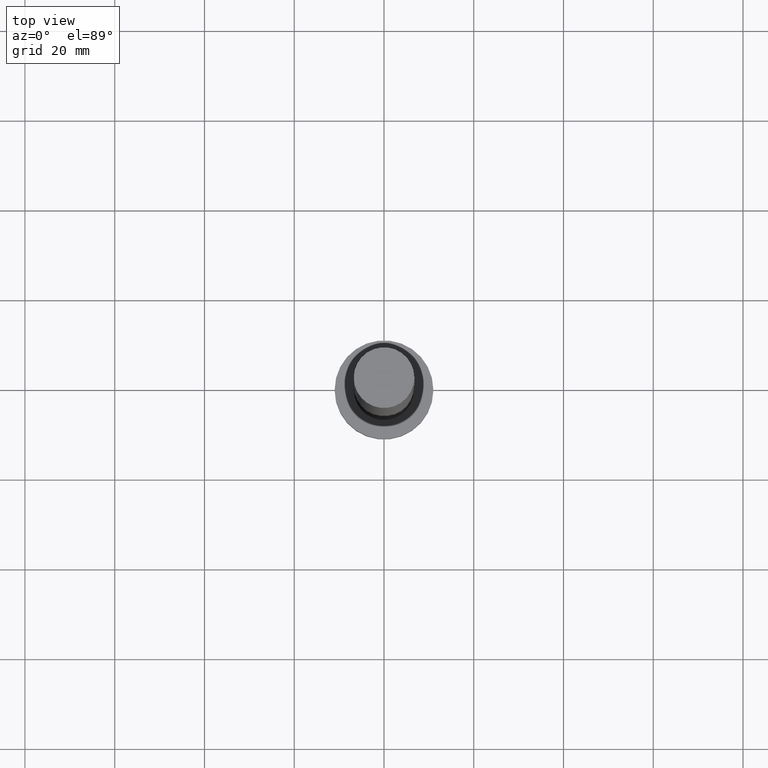
[diagram: clean part render]
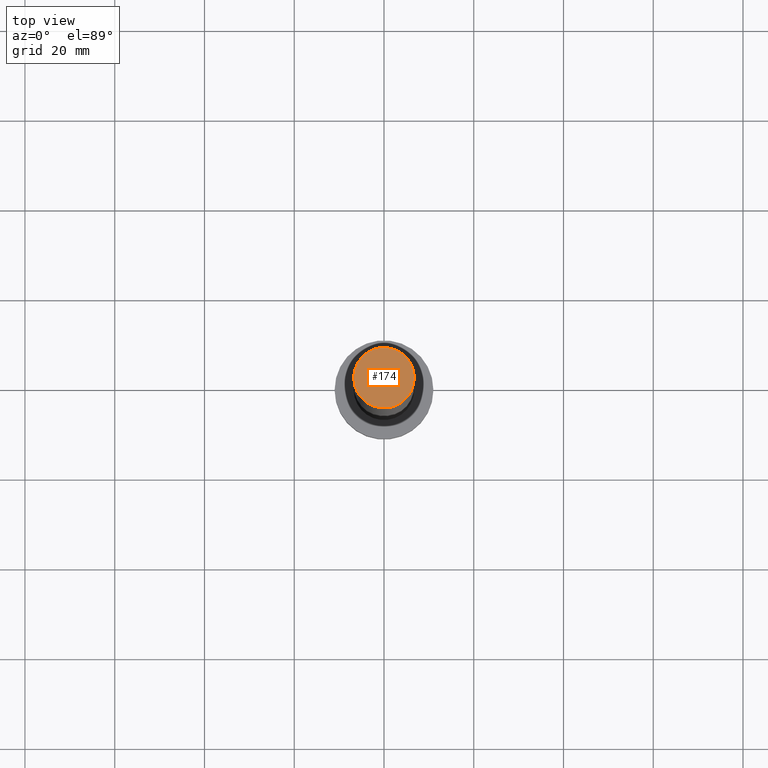
[diagram: same view with one face highlighted and labeled with its STEP entity id]
A machine part, top view. The second image highlights one B-rep face of the part: STEP entity #174.
In plain terms, the highlighted planar face has unit normal (0, 0, 1).
Its self-contained STEP definition (entity closure, byte-faithful):
#2 = DIRECTION ( 'NONE',  ( 1.000000000000000000, 0.000000000000000000, 0.000000000000000000 ) ) ;
#3 = FACE_OUTER_BOUND ( 'NONE', #46, .T. ) ;
#19 = CARTESIAN_POINT ( 'NONE',  ( -6.750000000000000000, 0.000000000000000000, 160.0000000000000000 ) ) ;
#36 = AXIS2_PLACEMENT_3D ( 'NONE', #240, #184, #2 ) ;
#46 = EDGE_LOOP ( 'NONE', ( #113, #88 ) ) ;
#62 = AXIS2_PLACEMENT_3D ( 'NONE', #171, #251, #94 ) ;
#76 = CARTESIAN_POINT ( 'NONE',  ( 6.750000000000000000, 8.266365894244634333E-16, 160.0000000000000000 ) ) ;
#78 = EDGE_CURVE ( 'NONE', #183, #91, #246, .T. ) ;
#82 = CARTESIAN_POINT ( 'NONE',  ( 0.000000000000000000, 0.000000000000000000, 160.0000000000000000 ) ) ;
#88 = ORIENTED_EDGE ( 'NONE', *, *, #161, .T. ) ;
#91 = VERTEX_POINT ( 'NONE', #76 ) ;
#94 = DIRECTION ( 'NONE',  ( 1.000000000000000000, 0.000000000000000000, 0.000000000000000000 ) ) ;
#98 = PLANE ( 'NONE',  #177 ) ;
#103 = DIRECTION ( 'NONE',  ( 0.000000000000000000, 0.000000000000000000, 1.000000000000000000 ) ) ;
#113 = ORIENTED_EDGE ( 'NONE', *, *, #78, .T. ) ;
#120 = DIRECTION ( 'NONE',  ( 1.000000000000000000, 0.000000000000000000, -0.000000000000000000 ) ) ;
#161 = EDGE_CURVE ( 'NONE', #91, #183, #181, .T. ) ;
#171 = CARTESIAN_POINT ( 'NONE',  ( 0.000000000000000000, 0.000000000000000000, 160.0000000000000000 ) ) ;
#174 = ADVANCED_FACE ( 'NONE', ( #3 ), #98, .T. ) ;
#177 = AXIS2_PLACEMENT_3D ( 'NONE', #82, #103, #120 ) ;
#181 = CIRCLE ( 'NONE', #36, 6.750000000000000000 ) ;
#183 = VERTEX_POINT ( 'NONE', #19 ) ;
#184 = DIRECTION ( 'NONE',  ( 0.000000000000000000, 0.000000000000000000, 1.000000000000000000 ) ) ;
#240 = CARTESIAN_POINT ( 'NONE',  ( 0.000000000000000000, 0.000000000000000000, 160.0000000000000000 ) ) ;
#246 = CIRCLE ( 'NONE', #62, 6.750000000000000000 ) ;
#251 = DIRECTION ( 'NONE',  ( 0.000000000000000000, 0.000000000000000000, 1.000000000000000000 ) ) ;